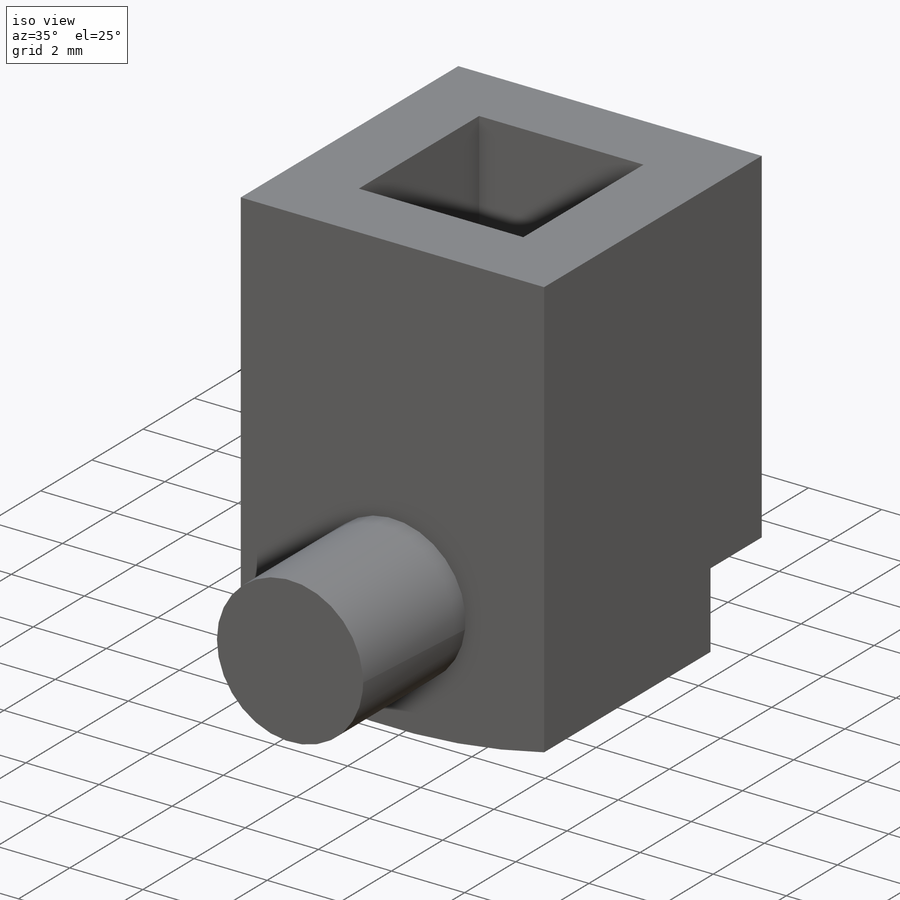
[diagram: iso view]
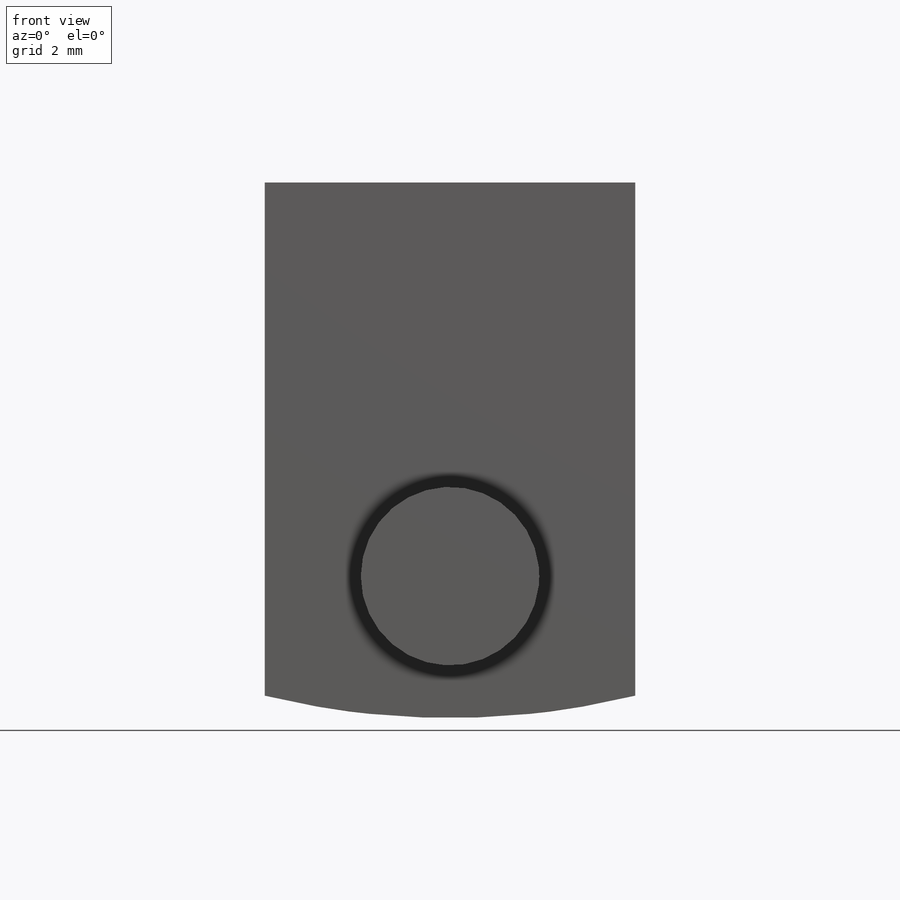
[diagram: front view]
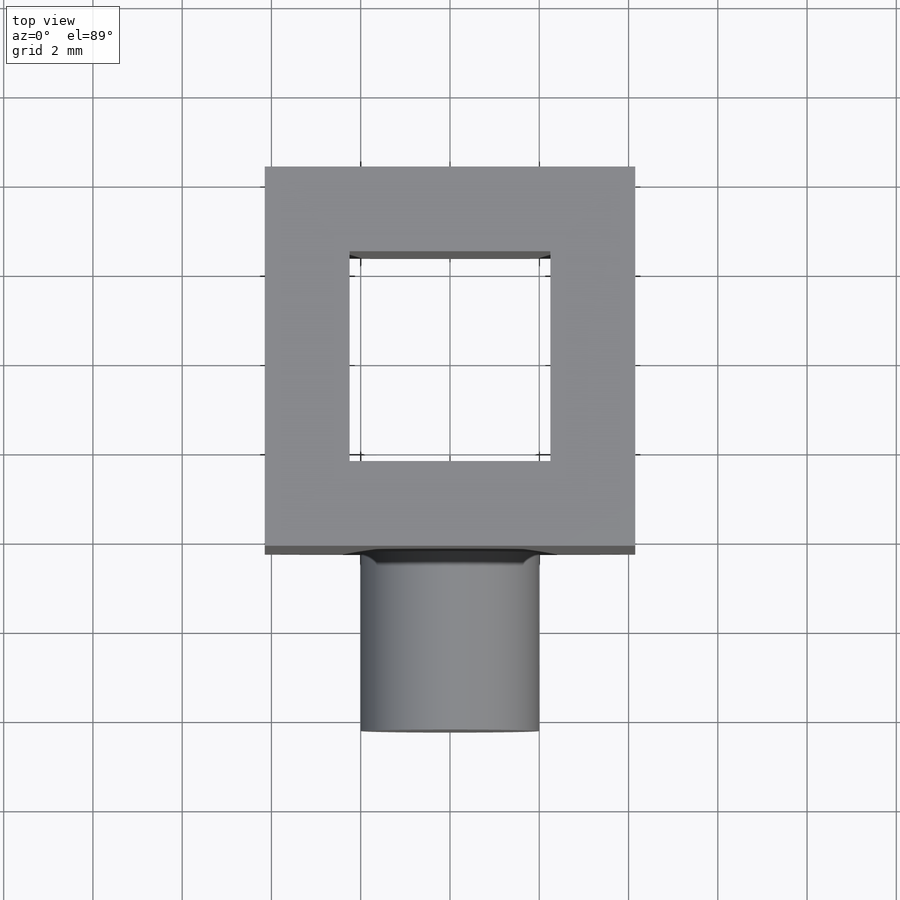
[diagram: top view]
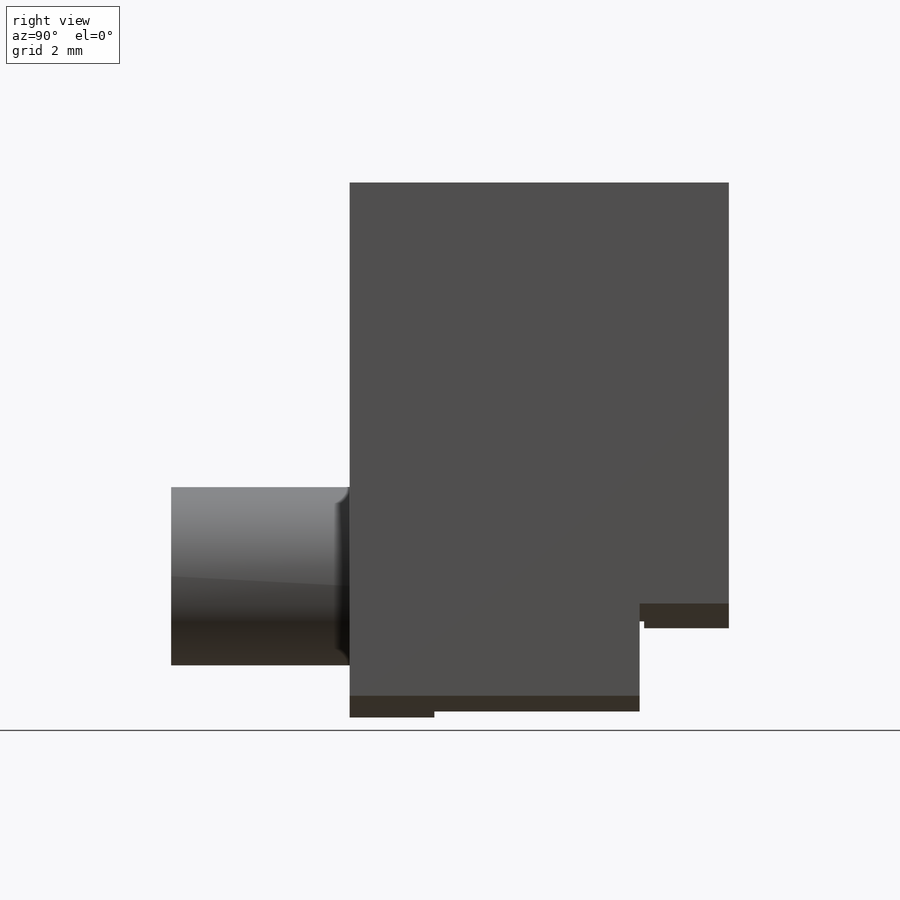
[diagram: right view]
SOLIDWORKS PART (.sldprt)
format: sldprt  version: not decoded by parser v0  size: 193,536 bytes
history: native  units: mm
features: sketch x4, plane x3, extrude x2, cut_extrude x2, material x1 (+9 scaffold rows collapsed)
feature tree (21):
  scaffold x9  (default folders/planes/origin — collapsed)
  material  "Material <sin especificar>"
  plane  "Alzado"
  plane  "Planta"
  plane  "Vista lateral"
  sketch  "Croquis1"  dims[c1.D1=4.5mm c1.D2=4.7mm c1.D4=8.5mm c1.D3=8.5mm c2.D4=4.5mm c3.D4=90.0deg c4.D4=8.3mm c4.D3=2.0mm]
  extrude  "Saliente-Extruir1"  Depth=12mm
  sketch  "Croquis2"  dims[D1=17.5mm]
  cut_extrude  "Cortar-Extruir3"  Depth=10mm
  sketch  "Croquis3"  dims[c1.D2=22.3mm c1.D1=4.0mm c1.D3=35.0mm c2.D1=4.0mm c2.D4=8.3mm]
  extrude  "Saliente-Extruir2"  Depth=4mm
  sketch  "Croquis4"  dims[D1=2.0mm]
  cut_extrude  "Cortar-Extruir4"  Depth=2mm
decode coverage: 8 of 8 modeling features carry decoded parameters
note: suppression state not decoded; provenance and decode notes live in map.json
